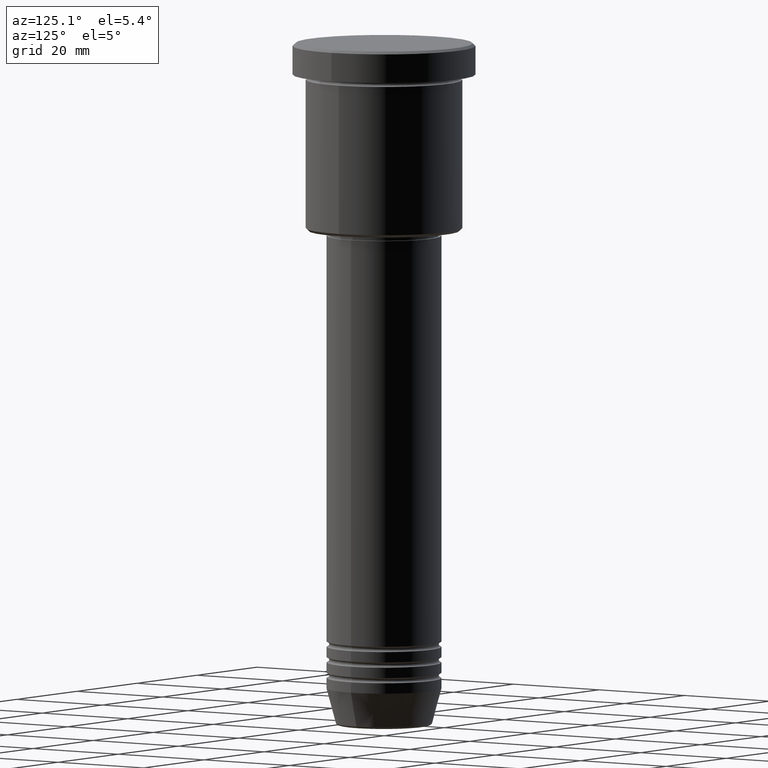
[diagram: clean part render]
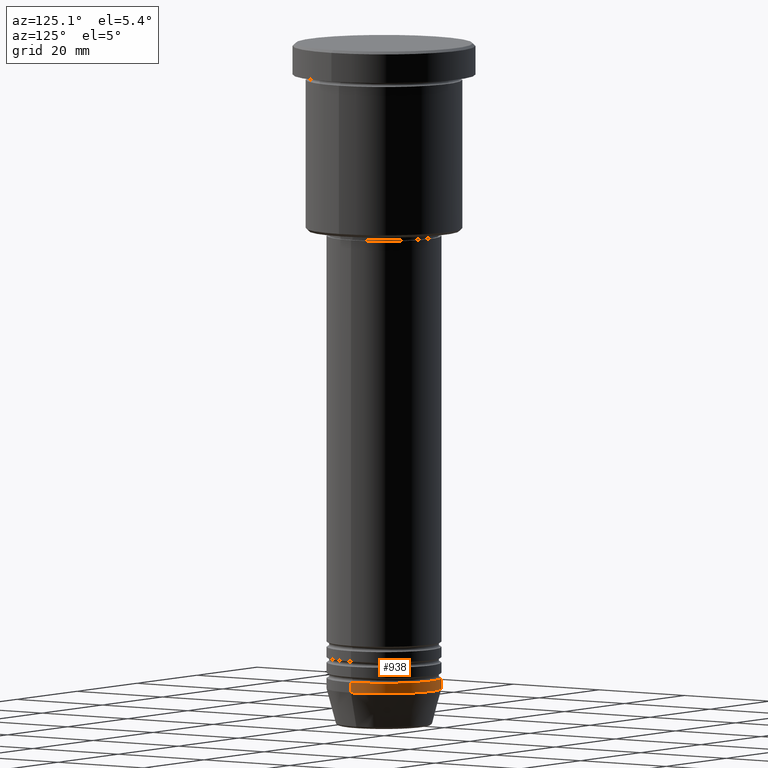
[diagram: same view with one face highlighted and labeled with its STEP entity id]
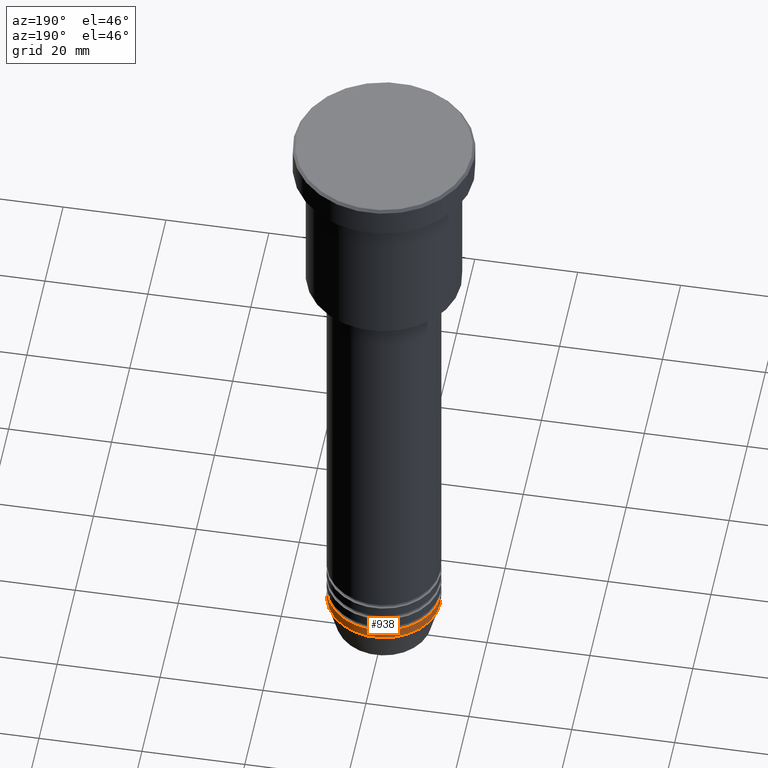
[diagram: same view with one face highlighted and labeled with its STEP entity id]
A machine part, auxiliary view. The second image highlights one B-rep face of the part: STEP entity #938.
A second angle (auxiliary view) of the same face is appended — the face is thin or edge-on in the first view.
In plain terms, the highlighted cylindrical surface (partial cylindrical patch) has radius 11 mm, axis along (-0, -0, 1).
Its self-contained STEP definition (entity closure, byte-faithful):
#16 = VERTEX_POINT ( 'NONE', #1140 ) ;
#18 = EDGE_LOOP ( 'NONE', ( #157, #205, #1068, #677 ) ) ;
#22 = VERTEX_POINT ( 'NONE', #1168 ) ;
#30 = AXIS2_PLACEMENT_3D ( 'NONE', #958, #955, #131 ) ;
#75 = VECTOR ( 'NONE', #202, 1000.000000000000000 ) ;
#81 = CARTESIAN_POINT ( 'NONE',  ( 0.000000000000000000, 0.000000000000000000, -124.0000000000000000 ) ) ;
#114 = FACE_OUTER_BOUND ( 'NONE', #18, .T. ) ;
#131 = DIRECTION ( 'NONE',  ( 1.000000000000000000, 0.000000000000000000, 0.000000000000000000 ) ) ;
#140 = DIRECTION ( 'NONE',  ( -0.000000000000000000, -0.000000000000000000, 1.000000000000000000 ) ) ;
#157 = ORIENTED_EDGE ( 'NONE', *, *, #595, .T. ) ;
#167 = EDGE_CURVE ( 'NONE', #928, #22, #1064, .T. ) ;
#202 = DIRECTION ( 'NONE',  ( -0.000000000000000000, -0.000000000000000000, 1.000000000000000000 ) ) ;
#205 = ORIENTED_EDGE ( 'NONE', *, *, #858, .T. ) ;
#214 = CYLINDRICAL_SURFACE ( 'NONE', #30, 11.00000000000000000 ) ;
#304 = CARTESIAN_POINT ( 'NONE',  ( 11.00000000000000000, 0.000000000000000000, -124.0000000000000000 ) ) ;
#316 = DIRECTION ( 'NONE',  ( -0.000000000000000000, -0.000000000000000000, 1.000000000000000000 ) ) ;
#389 = AXIS2_PLACEMENT_3D ( 'NONE', #81, #316, #671 ) ;
#401 = DIRECTION ( 'NONE',  ( -0.000000000000000000, -0.000000000000000000, 1.000000000000000000 ) ) ;
#449 = VERTEX_POINT ( 'NONE', #491 ) ;
#491 = CARTESIAN_POINT ( 'NONE',  ( -11.00000000000000000, 1.347111479062088405E-15, -122.0000000000000000 ) ) ;
#595 = EDGE_CURVE ( 'NONE', #928, #16, #953, .T. ) ;
#661 = CARTESIAN_POINT ( 'NONE',  ( 0.000000000000000000, 0.000000000000000000, -122.0000000000000000 ) ) ;
#671 = DIRECTION ( 'NONE',  ( 1.000000000000000000, 0.000000000000000000, 0.000000000000000000 ) ) ;
#677 = ORIENTED_EDGE ( 'NONE', *, *, #167, .F. ) ;
#711 = CARTESIAN_POINT ( 'NONE',  ( 11.00000000000000000, 0.000000000000000000, 0.000000000000000000 ) ) ;
#732 = LINE ( 'NONE', #1020, #75 ) ;
#737 = CIRCLE ( 'NONE', #975, 11.00000000000000000 ) ;
#770 = VECTOR ( 'NONE', #140, 1000.000000000000000 ) ;
#858 = EDGE_CURVE ( 'NONE', #16, #449, #732, .T. ) ;
#928 = VERTEX_POINT ( 'NONE', #304 ) ;
#938 = ADVANCED_FACE ( 'NONE', ( #114 ), #214, .T. ) ;
#953 = CIRCLE ( 'NONE', #389, 11.00000000000000000 ) ;
#955 = DIRECTION ( 'NONE',  ( -0.000000000000000000, -0.000000000000000000, 1.000000000000000000 ) ) ;
#958 = CARTESIAN_POINT ( 'NONE',  ( 0.000000000000000000, 0.000000000000000000, 0.000000000000000000 ) ) ;
#975 = AXIS2_PLACEMENT_3D ( 'NONE', #661, #401, #1040 ) ;
#981 = EDGE_CURVE ( 'NONE', #22, #449, #737, .T. ) ;
#1020 = CARTESIAN_POINT ( 'NONE',  ( -11.00000000000000000, 1.347111479062088405E-15, 0.000000000000000000 ) ) ;
#1040 = DIRECTION ( 'NONE',  ( 1.000000000000000000, 0.000000000000000000, 0.000000000000000000 ) ) ;
#1064 = LINE ( 'NONE', #711, #770 ) ;
#1068 = ORIENTED_EDGE ( 'NONE', *, *, #981, .F. ) ;
#1140 = CARTESIAN_POINT ( 'NONE',  ( -11.00000000000000000, 1.347111479062088405E-15, -124.0000000000000000 ) ) ;
#1168 = CARTESIAN_POINT ( 'NONE',  ( 11.00000000000000000, 0.000000000000000000, -122.0000000000000000 ) ) ;